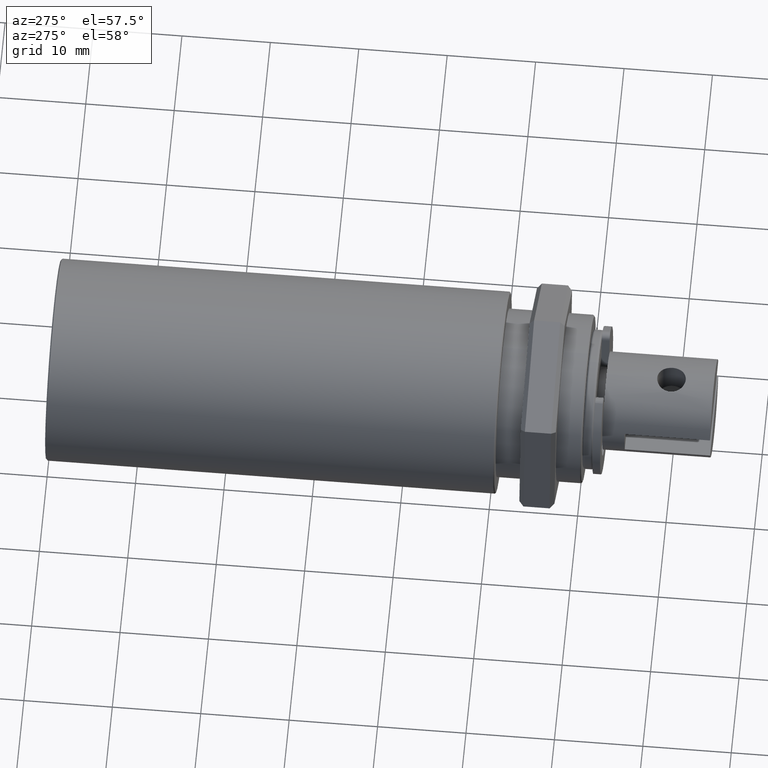
[diagram: clean part render]
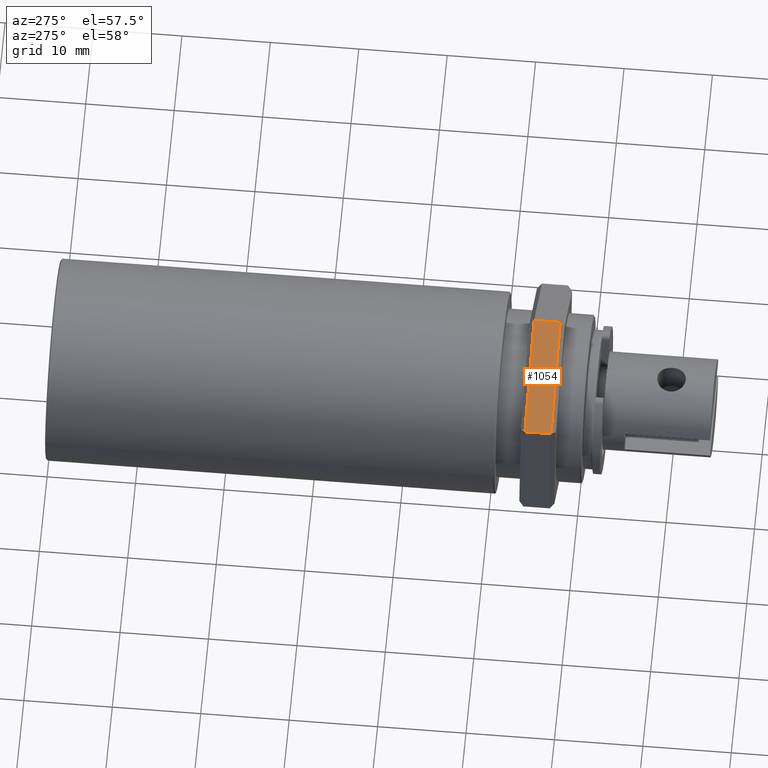
[diagram: same view with one face highlighted and labeled with its STEP entity id]
A machine part, auxiliary view. The second image highlights one B-rep face of the part: STEP entity #1054.
In plain terms, the highlighted planar face has unit normal (0.3668, -0, -0.9303).
Its self-contained STEP definition (entity closure, byte-faithful):
#153=ORIENTED_EDGE('',*,*,#420,.T.);
#154=ORIENTED_EDGE('',*,*,#422,.T.);
#155=ORIENTED_EDGE('',*,*,#423,.F.);
#156=ORIENTED_EDGE('',*,*,#424,.T.);
#420=EDGE_CURVE('',#554,#553,#654,.T.);
#422=EDGE_CURVE('',#553,#555,#656,.T.);
#423=EDGE_CURVE('',#556,#555,#657,.T.);
#424=EDGE_CURVE('',#556,#554,#658,.T.);
#553=VERTEX_POINT('',#1683);
#554=VERTEX_POINT('',#1685);
#555=VERTEX_POINT('',#1689);
#556=VERTEX_POINT('',#1691);
#654=LINE('',#1684,#734);
#656=LINE('',#1688,#736);
#657=LINE('',#1690,#737);
#658=LINE('',#1692,#738);
#734=VECTOR('',#1336,1.);
#736=VECTOR('',#1340,1.);
#737=VECTOR('',#1341,1.);
#738=VECTOR('',#1342,1.);
#807=EDGE_LOOP('',(#153,#154,#155,#156));
#909=FACE_BOUND('',#807,.T.);
#1013=PLANE('',#1188);
#1054=ADVANCED_FACE('',(#909),#1013,.F.);
#1188=AXIS2_PLACEMENT_3D('',#1687,#1338,#1339);
#1336=DIRECTION('',(0.,0.,-1.));
#1338=DIRECTION('',(0.930286180641258,-0.36683459775204,0.));
#1339=DIRECTION('',(0.36683459775204,0.930286180641258,0.));
#1340=DIRECTION('',(-0.36683459775204,-0.930286180641258,0.));
#1341=DIRECTION('',(0.,0.,-1.));
#1342=DIRECTION('',(0.36683459775204,0.930286180641258,0.));
#1683=CARTESIAN_POINT('',(-0.00798426598496566,0.0100449840723942,0.003349625));
#1684=CARTESIAN_POINT('',(-0.00798426598496566,0.0100449840723942,0.006810375));
#1685=CARTESIAN_POINT('',(-0.00798426598496566,0.0100449840723942,0.006302375));
#1687=CARTESIAN_POINT('',(-0.010337805182376,0.00407644946751955,0.006810375));
#1688=CARTESIAN_POINT('',(-0.010337805182376,0.00407644946751955,0.003349625));
#1689=CARTESIAN_POINT('',(-0.0126913443797863,-0.00189208513735513,0.003349625));
#1690=CARTESIAN_POINT('',(-0.0126913443797863,-0.00189208513735513,0.006810375));
#1691=CARTESIAN_POINT('',(-0.0126913443797863,-0.00189208513735513,0.006302375));
#1692=CARTESIAN_POINT('',(-0.00798426598496566,0.0100449840723942,0.006302375));